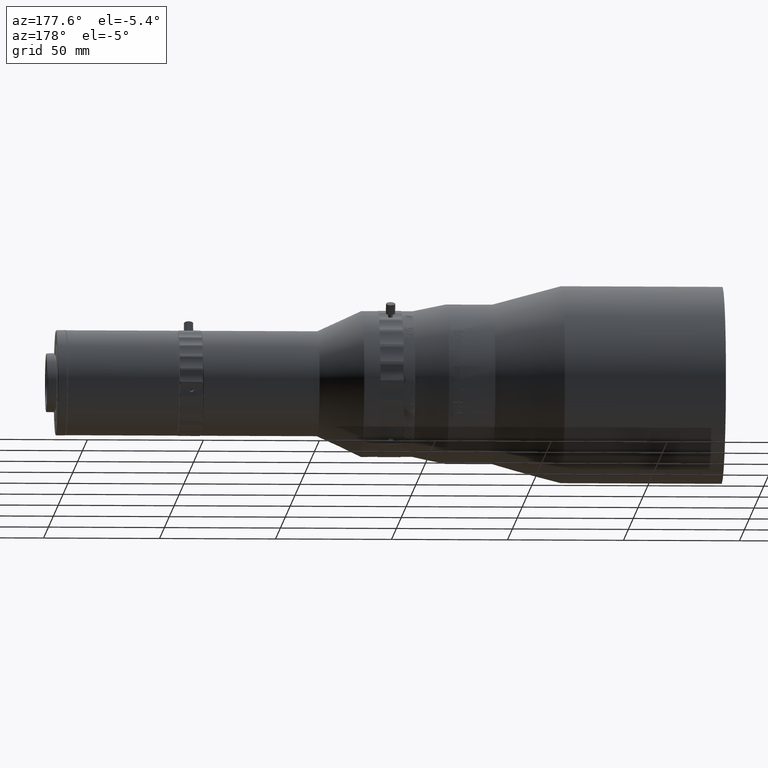
[diagram: clean part render]
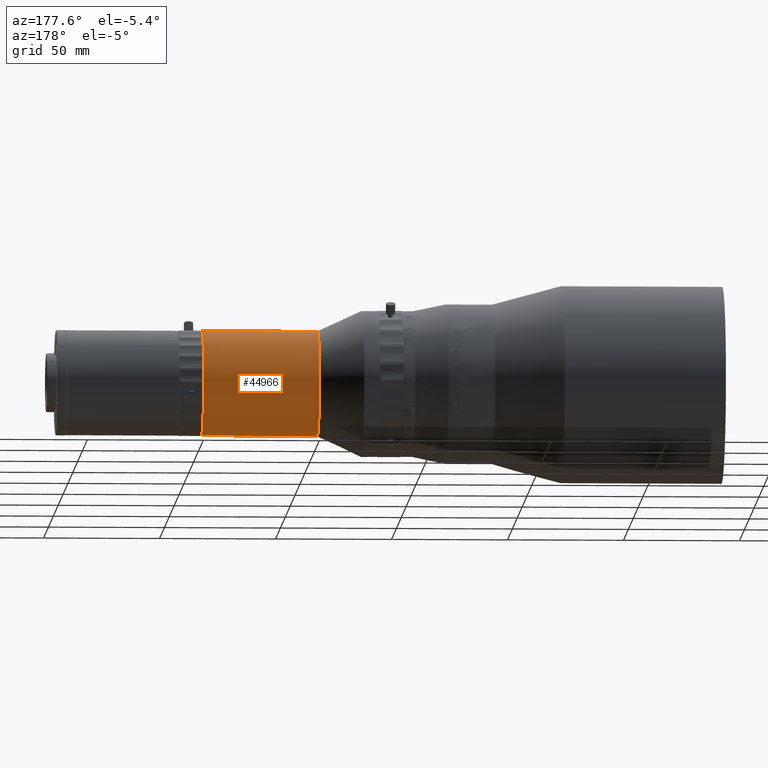
[diagram: same view with one face highlighted and labeled with its STEP entity id]
A machine part, auxiliary view. The second image highlights one B-rep face of the part: STEP entity #44966.
In plain terms, the highlighted cylindrical surface (bore or boss wall) has radius 22.7 mm, axis along (1, -0, -0).
Its self-contained STEP definition (entity closure, byte-faithful):
#1520 = CARTESIAN_POINT ( 'NONE',  ( 90.76267934747565391, 10.19269740323192686, 154.4499999608852647 ) ) ;
#3300 = CIRCLE ( 'NONE', #35541, 22.69999999999927809 ) ;
#11663 = DIRECTION ( 'NONE',  ( 1.000000000000000000, -0.000000000000000000, -0.000000000000000000 ) ) ;
#15740 = EDGE_LOOP ( 'NONE', ( #55215 ) ) ;
#21383 = DIRECTION ( 'NONE',  ( -1.000000000000000000, 0.000000000000000000, 0.000000000000000000 ) ) ;
#23653 = ORIENTED_EDGE ( 'NONE', *, *, #42757, .T. ) ;
#25329 = CIRCLE ( 'NONE', #53172, 22.69999999999927809 ) ;
#26261 = CARTESIAN_POINT ( 'NONE',  ( 140.7366800113790077, 10.19269740323192686, 131.7499999608859866 ) ) ;
#30782 = VERTEX_POINT ( 'NONE', #41262 ) ;
#33242 = CYLINDRICAL_SURFACE ( 'NONE', #66557, 22.69999999999927809 ) ;
#35541 = AXIS2_PLACEMENT_3D ( 'NONE', #43317, #21383, #63815 ) ;
#41262 = CARTESIAN_POINT ( 'NONE',  ( 90.76267934747565391, 10.19269740323192686, 131.7499999608859866 ) ) ;
#42757 = EDGE_CURVE ( 'NONE', #30782, #30782, #25329, .T. ) ;
#43317 = CARTESIAN_POINT ( 'NONE',  ( 140.7366800113790077, 10.19269740323192686, 154.4499999608852647 ) ) ;
#44055 = CARTESIAN_POINT ( 'NONE',  ( 146.6613389337572642, 10.19269740323192686, 154.4499999608852647 ) ) ;
#44086 = DIRECTION ( 'NONE',  ( 1.000000000000000000, -0.000000000000000000, -0.000000000000000000 ) ) ;
#44966 = ADVANCED_FACE ( 'NONE', ( #53582, #49650 ), #33242, .T. ) ;
#47621 = EDGE_CURVE ( 'NONE', #63843, #63843, #3300, .T. ) ;
#49650 = FACE_OUTER_BOUND ( 'NONE', #68260, .T. ) ;
#53172 = AXIS2_PLACEMENT_3D ( 'NONE', #1520, #44086, #65311 ) ;
#53582 = FACE_OUTER_BOUND ( 'NONE', #15740, .T. ) ;
#55215 = ORIENTED_EDGE ( 'NONE', *, *, #47621, .T. ) ;
#63815 = DIRECTION ( 'NONE',  ( 0.000000000000000000, 0.000000000000000000, -1.000000000000000000 ) ) ;
#63843 = VERTEX_POINT ( 'NONE', #26261 ) ;
#65278 = DIRECTION ( 'NONE',  ( 0.000000000000000000, 0.000000000000000000, -1.000000000000000000 ) ) ;
#65311 = DIRECTION ( 'NONE',  ( 0.000000000000000000, 0.000000000000000000, -1.000000000000000000 ) ) ;
#66557 = AXIS2_PLACEMENT_3D ( 'NONE', #44055, #11663, #65278 ) ;
#68260 = EDGE_LOOP ( 'NONE', ( #23653 ) ) ;